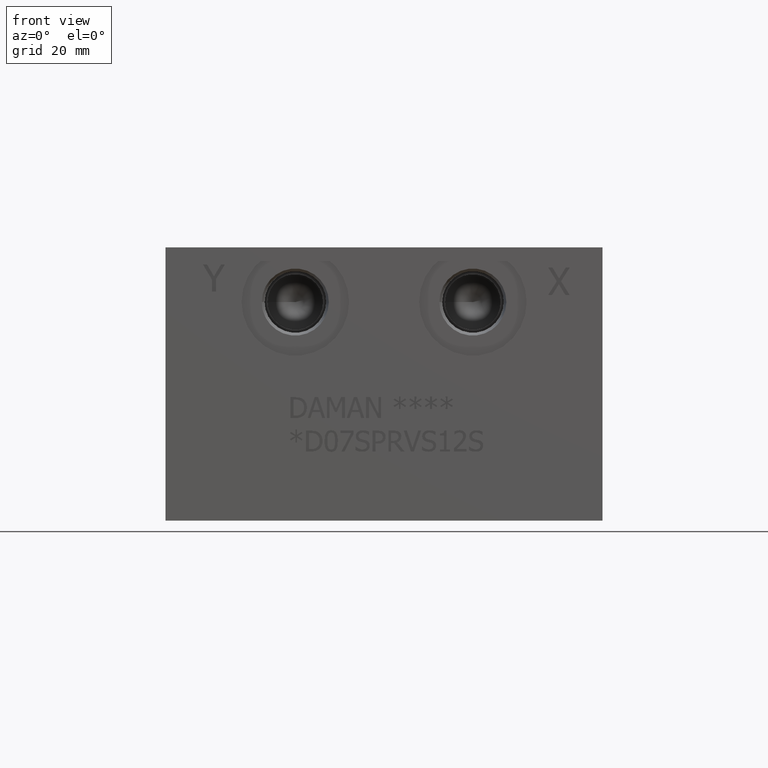
[diagram: clean part render]
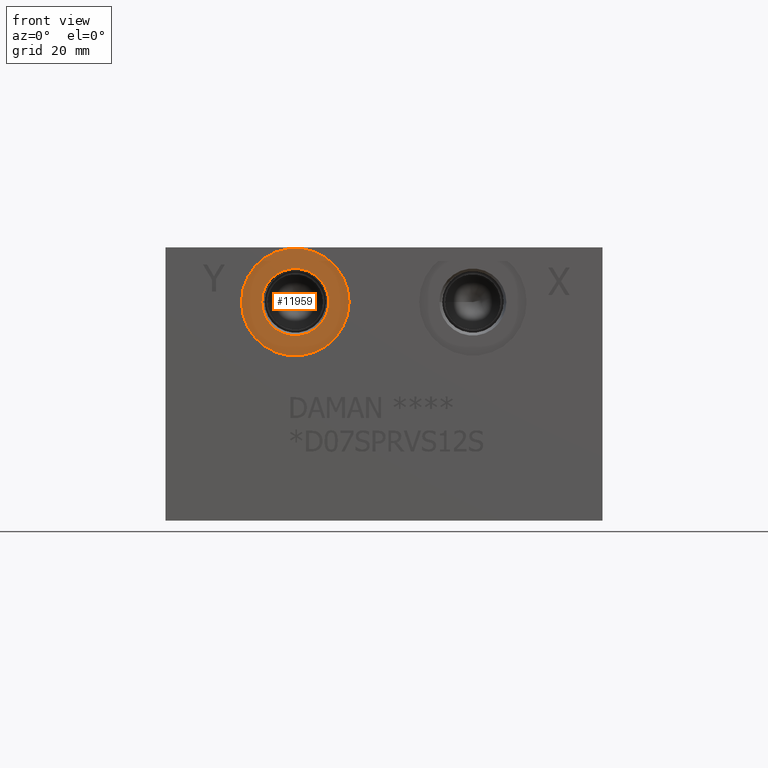
[diagram: same view with one face highlighted and labeled with its STEP entity id]
A machine part, front view. The second image highlights one B-rep face of the part: STEP entity #11959.
In plain terms, the highlighted planar face has unit normal (0, 1, 0).
Its self-contained STEP definition (entity closure, byte-faithful):
#250=CIRCLE('',#12561,12.5095);
#251=CIRCLE('',#12562,12.5095);
#252=CIRCLE('',#12564,7.7978);
#253=CIRCLE('',#12565,7.7978);
#451=FACE_BOUND('',#2122,.T.);
#1453=FACE_OUTER_BOUND('',#2121,.T.);
#2121=EDGE_LOOP('',(#10177,#10178));
#2122=EDGE_LOOP('',(#10179,#10180));
#5440=VERTEX_POINT('',#20351);
#5441=VERTEX_POINT('',#20353);
#5442=VERTEX_POINT('',#20357);
#5443=VERTEX_POINT('',#20358);
#7065=EDGE_CURVE('',#5440,#5441,#250,.T.);
#7066=EDGE_CURVE('',#5441,#5440,#251,.T.);
#7067=EDGE_CURVE('',#5442,#5443,#252,.T.);
#7068=EDGE_CURVE('',#5443,#5442,#253,.T.);
#10177=ORIENTED_EDGE('',*,*,#7066,.F.);
#10178=ORIENTED_EDGE('',*,*,#7065,.F.);
#10179=ORIENTED_EDGE('',*,*,#7067,.T.);
#10180=ORIENTED_EDGE('',*,*,#7068,.T.);
#10969=PLANE('',#12563);
#11959=ADVANCED_FACE('',(#1453,#451),#10969,.F.);
#12561=AXIS2_PLACEMENT_3D('',#20354,#14839,#14840);
#12562=AXIS2_PLACEMENT_3D('',#20355,#14841,#14842);
#12563=AXIS2_PLACEMENT_3D('',#20356,#14843,#14844);
#12564=AXIS2_PLACEMENT_3D('',#20359,#14845,#14846);
#12565=AXIS2_PLACEMENT_3D('',#20360,#14847,#14848);
#14839=DIRECTION('center_axis',(0.,1.,0.));
#14840=DIRECTION('ref_axis',(1.,0.,0.));
#14841=DIRECTION('center_axis',(0.,1.,0.));
#14842=DIRECTION('ref_axis',(1.,0.,0.));
#14843=DIRECTION('center_axis',(0.,1.,0.));
#14844=DIRECTION('ref_axis',(0.,0.,1.));
#14845=DIRECTION('center_axis',(0.,1.,0.));
#14846=DIRECTION('ref_axis',(1.,0.,0.));
#14847=DIRECTION('center_axis',(0.,1.,0.));
#14848=DIRECTION('ref_axis',(1.,0.,0.));
#20351=CARTESIAN_POINT('',(17.6657,0.7874,50.8));
#20353=CARTESIAN_POINT('',(42.6847,0.7874,50.8));
#20354=CARTESIAN_POINT('Origin',(30.1752,0.7874,50.8));
#20355=CARTESIAN_POINT('Origin',(30.1752,0.7874,50.8));
#20356=CARTESIAN_POINT('Origin',(37.973,0.7874,50.8));
#20357=CARTESIAN_POINT('',(37.973,0.7874,50.8));
#20358=CARTESIAN_POINT('',(22.3774,0.7874,50.8));
#20359=CARTESIAN_POINT('Origin',(30.1752,0.7874,50.8));
#20360=CARTESIAN_POINT('Origin',(30.1752,0.7874,50.8));